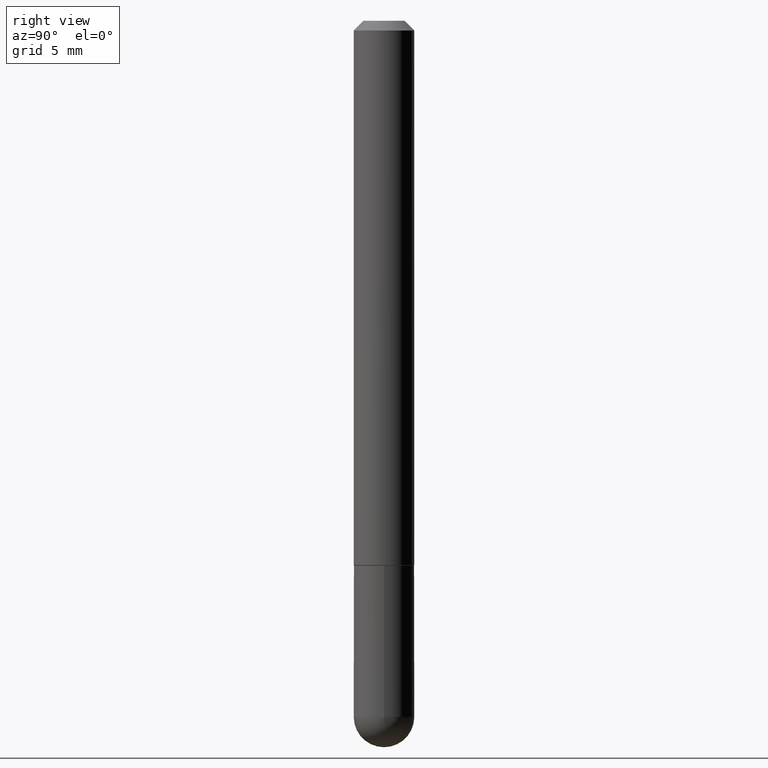
[diagram: clean part render]
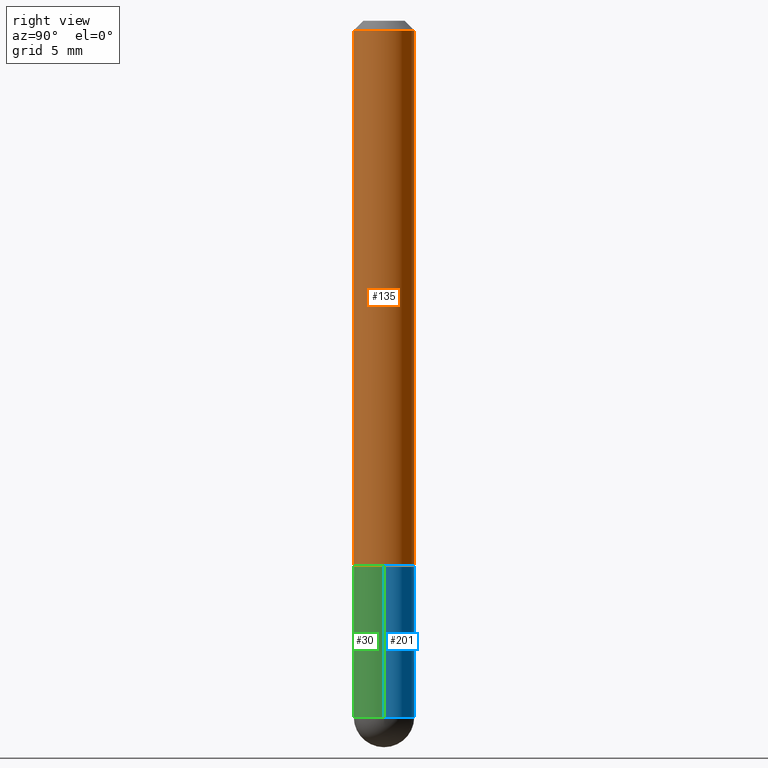
[diagram: same view with three faces highlighted in distinct colors, each labeled with its STEP entity id]
A machine part, right view with three faces highlighted in distinct colors.
Their STEP definitions:

[orange] entity #135 — the highlighted cylindrical surface (edge-blend (fillet) strip) has radius 1.5875 mm, axis along (-0, 0, 1).
#42 = ORIENTED_EDGE ( 'NONE', *, *, #385, .T. ) ;
#69 = VERTEX_POINT ( 'NONE', #394 ) ;
#71 = ORIENTED_EDGE ( 'NONE', *, *, #230, .T. ) ;
#77 = DIRECTION ( 'NONE',  ( -6.982962677686265922E-15, -1.000000000000000000, 3.462247996900564881E-15 ) ) ;
#80 = VECTOR ( 'NONE', #338, 39.37007874015748143 ) ;
#83 = CARTESIAN_POINT ( 'NONE',  ( 4.440892098500769143E-16, 0.06249999999999615585, -1.124000000000000554 ) ) ;
#115 = EDGE_CURVE ( 'NONE', #69, #375, #255, .T. ) ;
#122 = LINE ( 'NONE', #399, #260 ) ;
#135 = ADVANCED_FACE ( 'NONE', ( #173 ), #244, .T. ) ;
#138 = ORIENTED_EDGE ( 'NONE', *, *, #115, .F. ) ;
#140 = EDGE_CURVE ( 'NONE', #195, #69, #205, .T. ) ;
#151 = DIRECTION ( 'NONE',  ( -2.465882339758044742E-29, 3.462247996900564881E-15, 1.000000000000000000 ) ) ;
#169 = CIRCLE ( 'NONE', #352, 0.06250000000000005551 ) ;
#173 = FACE_OUTER_BOUND ( 'NONE', #359, .T. ) ;
#183 = CARTESIAN_POINT ( 'NONE',  ( 4.931764679516106020E-31, -6.924495993801153083E-17, -0.02000000000000006981 ) ) ;
#184 = CARTESIAN_POINT ( 'NONE',  ( 2.771651749888043021E-29, -3.891566748516236296E-15, -1.124000000000000332 ) ) ;
#188 = CARTESIAN_POINT ( 'NONE',  ( -4.364351673553642565E-16, -0.06250000000000394129, -1.124000000000000110 ) ) ;
#195 = VERTEX_POINT ( 'NONE', #188 ) ;
#202 = CARTESIAN_POINT ( 'NONE',  ( -4.364351673553916201E-16, -0.06250000000000000000, 2.163904998062853051E-16 ) ) ;
#205 = LINE ( 'NONE', #202, #80 ) ;
#212 = AXIS2_PLACEMENT_3D ( 'NONE', #232, #360, #77 ) ;
#230 = EDGE_CURVE ( 'NONE', #293, #375, #122, .T. ) ;
#232 = CARTESIAN_POINT ( 'NONE',  ( 0.000000000000000000, 0.000000000000000000, 0.000000000000000000 ) ) ;
#244 = CYLINDRICAL_SURFACE ( 'NONE', #212, 0.06250000000000000000 ) ;
#255 = CIRCLE ( 'NONE', #319, 0.06249999999999995143 ) ;
#260 = VECTOR ( 'NONE', #304, 39.37007874015748143 ) ;
#264 = CARTESIAN_POINT ( 'NONE',  ( 4.364351673553917187E-16, 0.06249999999999988204, -0.02000000000000028491 ) ) ;
#293 = VERTEX_POINT ( 'NONE', #83 ) ;
#304 = DIRECTION ( 'NONE',  ( -2.465882339758044462E-29, 3.462247996900565276E-15, 1.000000000000000000 ) ) ;
#319 = AXIS2_PLACEMENT_3D ( 'NONE', #183, #151, #400 ) ;
#338 = DIRECTION ( 'NONE',  ( -2.465882339758044462E-29, 3.462247996900565276E-15, 1.000000000000000000 ) ) ;
#341 = DIRECTION ( 'NONE',  ( -2.465882339758044742E-29, 3.462247996900564881E-15, 1.000000000000000000 ) ) ;
#342 = DIRECTION ( 'NONE',  ( -6.982962677686265133E-15, -1.000000000000000000, 4.370956789862817205E-15 ) ) ;
#352 = AXIS2_PLACEMENT_3D ( 'NONE', #184, #341, #342 ) ;
#359 = EDGE_LOOP ( 'NONE', ( #42, #71, #138, #381 ) ) ;
#360 = DIRECTION ( 'NONE',  ( -2.465882339758044742E-29, 3.462247996900564881E-15, 1.000000000000000000 ) ) ;
#375 = VERTEX_POINT ( 'NONE', #264 ) ;
#381 = ORIENTED_EDGE ( 'NONE', *, *, #140, .F. ) ;
#385 = EDGE_CURVE ( 'NONE', #195, #293, #169, .T. ) ;
#394 = CARTESIAN_POINT ( 'NONE',  ( -4.287811248607198352E-16, -0.06250000000000001388, -0.01999999999999985123 ) ) ;
#399 = CARTESIAN_POINT ( 'NONE',  ( 4.440892098500625669E-16, 0.06250000000000000000, -2.163904998062853051E-16 ) ) ;
#400 = DIRECTION ( 'NONE',  ( -6.982962677686265922E-15, -1.000000000000000000, 3.483106191921938315E-15 ) ) ;

[blue] entity #201 — the highlighted cylindrical surface (edge-blend (fillet) strip) has radius 1.5875 mm, axis along (-0, 0, 1).
#11 = DIRECTION ( 'NONE',  ( -2.445468806185136597E-29, 3.491481338843145583E-15, 1.000000000000000000 ) ) ;
#21 = CARTESIAN_POINT ( 'NONE',  ( 0.06249999999999997918, -4.364351673553915708E-16, 3.047610484872459170E-30 ) ) ;
#23 = DIRECTION ( 'NONE',  ( 1.000000000000000000, -6.982962677686269077E-15, 0.000000000000000000 ) ) ;
#31 = DIRECTION ( 'NONE',  ( 1.000000000000000000, -6.982962677686268288E-15, 0.000000000000000000 ) ) ;
#32 = CARTESIAN_POINT ( 'NONE',  ( 4.364351673554260835E-16, 0.06249999999999487910, -1.437500000000000444 ) ) ;
#39 = VERTEX_POINT ( 'NONE', #344 ) ;
#54 = DIRECTION ( 'NONE',  ( 1.000000000000000000, -6.982962677686267499E-15, 4.876176775795936353E-29 ) ) ;
#64 = VECTOR ( 'NONE', #240, 39.37007874015748143 ) ;
#81 = DIRECTION ( 'NONE',  ( -2.445468806185136597E-29, 3.491481338843145583E-15, 1.000000000000000000 ) ) ;
#89 = CARTESIAN_POINT ( 'NONE',  ( -0.06249999999999995143, -4.029371255542719745E-15, -1.437500000000000222 ) ) ;
#94 = EDGE_CURVE ( 'NONE', #132, #299, #393, .T. ) ;
#98 = EDGE_CURVE ( 'NONE', #199, #39, #272, .T. ) ;
#109 = ORIENTED_EDGE ( 'NONE', *, *, #94, .T. ) ;
#112 = DIRECTION ( 'NONE',  ( 1.000000000000000000, -6.982962677686268288E-15, 0.000000000000000000 ) ) ;
#123 = CARTESIAN_POINT ( 'NONE',  ( 3.515361408891134418E-29, -5.019004424587023131E-15, -1.437500000000000222 ) ) ;
#125 = CARTESIAN_POINT ( 'NONE',  ( 0.06249999999999995143, -4.909895632748173241E-15, -1.437500000000000222 ) ) ;
#132 = VERTEX_POINT ( 'NONE', #125 ) ;
#136 = ORIENTED_EDGE ( 'NONE', *, *, #147, .T. ) ;
#145 = DIRECTION ( 'NONE',  ( -2.445468806185136597E-29, 3.491481338843145583E-15, 1.000000000000000000 ) ) ;
#147 = EDGE_CURVE ( 'NONE', #299, #199, #222, .T. ) ;
#163 = AXIS2_PLACEMENT_3D ( 'NONE', #386, #11, #23 ) ;
#168 = VECTOR ( 'NONE', #369, 39.37007874015748143 ) ;
#176 = CARTESIAN_POINT ( 'NONE',  ( 0.000000000000000000, 0.000000000000000000, 0.000000000000000000 ) ) ;
#198 = CIRCLE ( 'NONE', #163, 0.06250000000000001388 ) ;
#199 = VERTEX_POINT ( 'NONE', #89 ) ;
#201 = ADVANCED_FACE ( 'NONE', ( #238 ), #361, .T. ) ;
#222 = CIRCLE ( 'NONE', #291, 0.06249999999999995143 ) ;
#226 = ORIENTED_EDGE ( 'NONE', *, *, #318, .F. ) ;
#234 = EDGE_CURVE ( 'NONE', #132, #303, #340, .T. ) ;
#238 = FACE_OUTER_BOUND ( 'NONE', #325, .T. ) ;
#240 = DIRECTION ( 'NONE',  ( -2.445468806185136877E-29, 3.491481338843145188E-15, 1.000000000000000000 ) ) ;
#272 = LINE ( 'NONE', #314, #64 ) ;
#273 = AXIS2_PLACEMENT_3D ( 'NONE', #123, #145, #112 ) ;
#291 = AXIS2_PLACEMENT_3D ( 'NONE', #334, #406, #31 ) ;
#296 = AXIS2_PLACEMENT_3D ( 'NONE', #176, #81, #54 ) ;
#299 = VERTEX_POINT ( 'NONE', #32 ) ;
#303 = VERTEX_POINT ( 'NONE', #410 ) ;
#314 = CARTESIAN_POINT ( 'NONE',  ( -0.06249999999999997918, 4.440892098500624683E-16, -3.074334431409315413E-30 ) ) ;
#318 = EDGE_CURVE ( 'NONE', #303, #39, #198, .T. ) ;
#325 = EDGE_LOOP ( 'NONE', ( #136, #335, #226, #379, #109 ) ) ;
#334 = CARTESIAN_POINT ( 'NONE',  ( 3.515361408891134418E-29, -5.019004424587023131E-15, -1.437500000000000222 ) ) ;
#335 = ORIENTED_EDGE ( 'NONE', *, *, #98, .T. ) ;
#340 = LINE ( 'NONE', #21, #168 ) ;
#344 = CARTESIAN_POINT ( 'NONE',  ( -0.06250000000000001388, -4.029371255542719745E-15, -1.125000000000000444 ) ) ;
#361 = CYLINDRICAL_SURFACE ( 'NONE', #296, 0.06249999999999997918 ) ;
#369 = DIRECTION ( 'NONE',  ( -2.445468806185136877E-29, 3.491481338843145188E-15, 1.000000000000000000 ) ) ;
#379 = ORIENTED_EDGE ( 'NONE', *, *, #234, .F. ) ;
#386 = CARTESIAN_POINT ( 'NONE',  ( 2.751152406958279792E-29, -3.927916506198540013E-15, -1.125000000000000444 ) ) ;
#393 = CIRCLE ( 'NONE', #273, 0.06249999999999995143 ) ;
#406 = DIRECTION ( 'NONE',  ( -2.445468806185136597E-29, 3.491481338843145583E-15, 1.000000000000000000 ) ) ;
#410 = CARTESIAN_POINT ( 'NONE',  ( 0.06250000000000001388, -4.364351673553932471E-15, -1.125000000000000444 ) ) ;

[green] entity #30 — the highlighted cylindrical surface (edge-blend (fillet) strip) has radius 1.5875 mm, axis along (-0, 0, 1).
#3 = AXIS2_PLACEMENT_3D ( 'NONE', #267, #389, #45 ) ;
#7 = VERTEX_POINT ( 'NONE', #224 ) ;
#17 = CYLINDRICAL_SURFACE ( 'NONE', #245, 0.06249999999999997918 ) ;
#20 = CARTESIAN_POINT ( 'NONE',  ( 0.000000000000000000, 0.000000000000000000, 0.000000000000000000 ) ) ;
#21 = CARTESIAN_POINT ( 'NONE',  ( 0.06249999999999997918, -4.364351673553915708E-16, 3.047610484872459170E-30 ) ) ;
#30 = ADVANCED_FACE ( 'NONE', ( #211 ), #17, .T. ) ;
#33 = CIRCLE ( 'NONE', #3, 0.06250000000000001388 ) ;
#39 = VERTEX_POINT ( 'NONE', #344 ) ;
#43 = ORIENTED_EDGE ( 'NONE', *, *, #73, .F. ) ;
#44 = ORIENTED_EDGE ( 'NONE', *, *, #180, .T. ) ;
#45 = DIRECTION ( 'NONE',  ( 1.000000000000000000, -6.982962677686269077E-15, 0.000000000000000000 ) ) ;
#50 = DIRECTION ( 'NONE',  ( -2.445468806185136597E-29, 3.491481338843145583E-15, 1.000000000000000000 ) ) ;
#56 = DIRECTION ( 'NONE',  ( -2.445468806185136597E-29, 3.491481338843145583E-15, 1.000000000000000000 ) ) ;
#58 = AXIS2_PLACEMENT_3D ( 'NONE', #279, #209, #85 ) ;
#64 = VECTOR ( 'NONE', #240, 39.37007874015748143 ) ;
#65 = CIRCLE ( 'NONE', #301, 0.06249999999999995143 ) ;
#73 = EDGE_CURVE ( 'NONE', #39, #303, #33, .T. ) ;
#85 = DIRECTION ( 'NONE',  ( 1.000000000000000000, -6.982962677686268288E-15, 0.000000000000000000 ) ) ;
#89 = CARTESIAN_POINT ( 'NONE',  ( -0.06249999999999995143, -4.029371255542719745E-15, -1.437500000000000222 ) ) ;
#98 = EDGE_CURVE ( 'NONE', #199, #39, #272, .T. ) ;
#105 = EDGE_CURVE ( 'NONE', #7, #132, #191, .T. ) ;
#125 = CARTESIAN_POINT ( 'NONE',  ( 0.06249999999999995143, -4.909895632748173241E-15, -1.437500000000000222 ) ) ;
#132 = VERTEX_POINT ( 'NONE', #125 ) ;
#137 = EDGE_LOOP ( 'NONE', ( #227, #44, #164, #332, #43 ) ) ;
#164 = ORIENTED_EDGE ( 'NONE', *, *, #105, .T. ) ;
#168 = VECTOR ( 'NONE', #369, 39.37007874015748143 ) ;
#180 = EDGE_CURVE ( 'NONE', #199, #7, #65, .T. ) ;
#185 = DIRECTION ( 'NONE',  ( 1.000000000000000000, -6.982962677686268288E-15, 0.000000000000000000 ) ) ;
#191 = CIRCLE ( 'NONE', #58, 0.06249999999999995143 ) ;
#199 = VERTEX_POINT ( 'NONE', #89 ) ;
#209 = DIRECTION ( 'NONE',  ( -2.445468806185136597E-29, 3.491481338843145583E-15, 1.000000000000000000 ) ) ;
#211 = FACE_OUTER_BOUND ( 'NONE', #137, .T. ) ;
#224 = CARTESIAN_POINT ( 'NONE',  ( -4.440892098500299770E-16, -0.06250000000000539846, -1.437500000000000000 ) ) ;
#227 = ORIENTED_EDGE ( 'NONE', *, *, #98, .F. ) ;
#234 = EDGE_CURVE ( 'NONE', #132, #303, #340, .T. ) ;
#240 = DIRECTION ( 'NONE',  ( -2.445468806185136877E-29, 3.491481338843145188E-15, 1.000000000000000000 ) ) ;
#245 = AXIS2_PLACEMENT_3D ( 'NONE', #20, #50, #305 ) ;
#267 = CARTESIAN_POINT ( 'NONE',  ( 2.751152406958279792E-29, -3.927916506198540013E-15, -1.125000000000000444 ) ) ;
#272 = LINE ( 'NONE', #314, #64 ) ;
#279 = CARTESIAN_POINT ( 'NONE',  ( 3.515361408891134418E-29, -5.019004424587023131E-15, -1.437500000000000222 ) ) ;
#301 = AXIS2_PLACEMENT_3D ( 'NONE', #401, #56, #185 ) ;
#303 = VERTEX_POINT ( 'NONE', #410 ) ;
#305 = DIRECTION ( 'NONE',  ( 1.000000000000000000, -6.982962677686267499E-15, 4.876176775795936353E-29 ) ) ;
#314 = CARTESIAN_POINT ( 'NONE',  ( -0.06249999999999997918, 4.440892098500624683E-16, -3.074334431409315413E-30 ) ) ;
#332 = ORIENTED_EDGE ( 'NONE', *, *, #234, .T. ) ;
#340 = LINE ( 'NONE', #21, #168 ) ;
#344 = CARTESIAN_POINT ( 'NONE',  ( -0.06250000000000001388, -4.029371255542719745E-15, -1.125000000000000444 ) ) ;
#369 = DIRECTION ( 'NONE',  ( -2.445468806185136877E-29, 3.491481338843145188E-15, 1.000000000000000000 ) ) ;
#389 = DIRECTION ( 'NONE',  ( -2.445468806185136597E-29, 3.491481338843145583E-15, 1.000000000000000000 ) ) ;
#401 = CARTESIAN_POINT ( 'NONE',  ( 3.515361408891134418E-29, -5.019004424587023131E-15, -1.437500000000000222 ) ) ;
#410 = CARTESIAN_POINT ( 'NONE',  ( 0.06250000000000001388, -4.364351673553932471E-15, -1.125000000000000444 ) ) ;